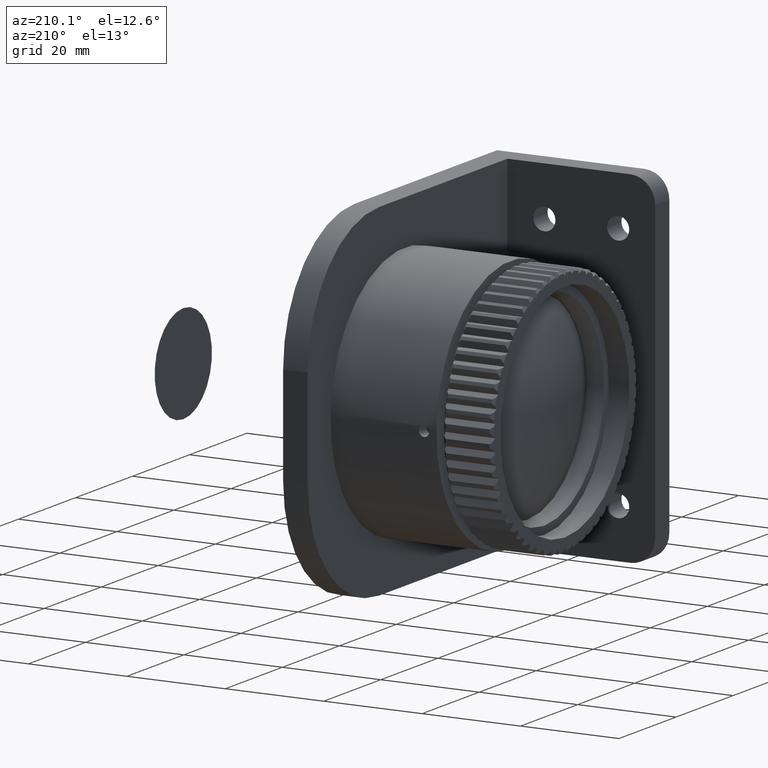
[diagram: clean part render]
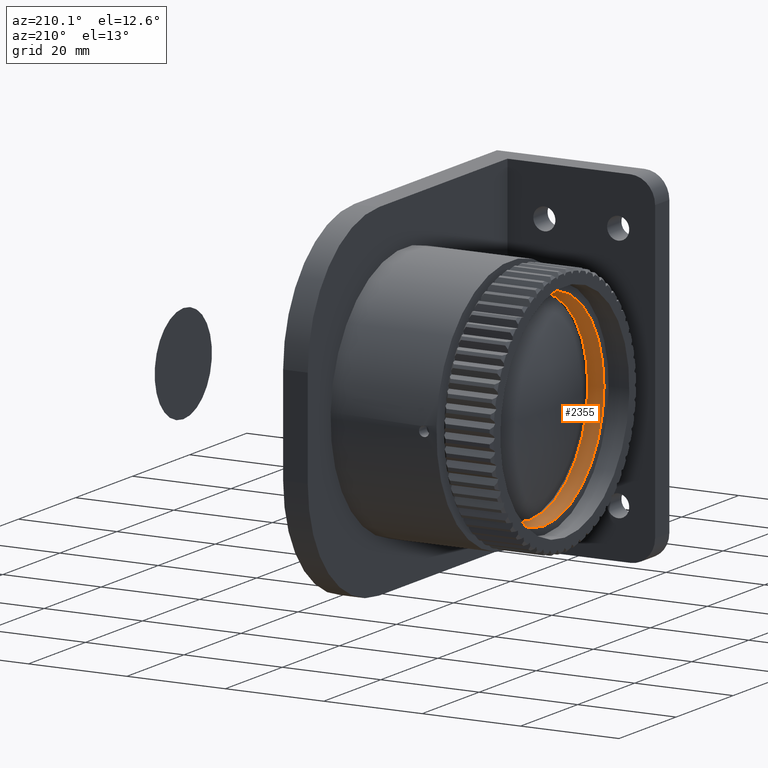
[diagram: same view with one face highlighted and labeled with its STEP entity id]
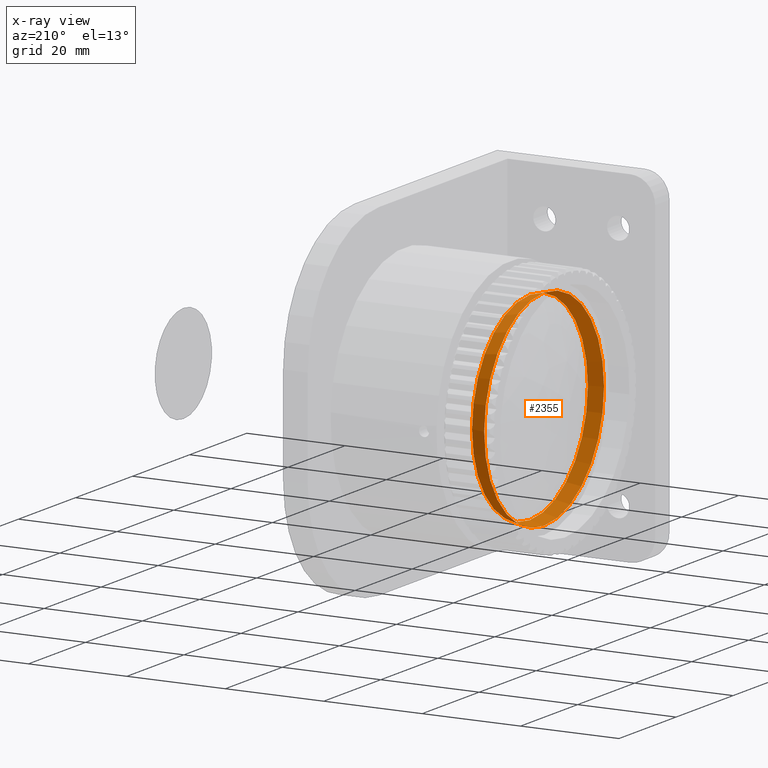
[diagram: x-ray of the same camera — body ghosted, the highlighted face saturated]
A machine part, auxiliary view. The second image highlights one B-rep face of the part: STEP entity #2355.
The next image is the same camera in x-ray: the body ghosted, the highlighted face saturated — about 0% of this face is hidden behind the body in this view.
In plain terms, the highlighted conical surface has half-angle 13.655 deg.
Its self-contained STEP definition (entity closure, byte-faithful):
#443 = EDGE_LOOP ( 'NONE', ( #3593 ) ) ;
#1232 = DIRECTION ( 'NONE',  ( 8.545435842250279754E-17, 0.000000000000000000, 1.000000000000000000 ) ) ;
#1340 = CIRCLE ( 'NONE', #7413, 20.30000000000000426 ) ;
#2247 = DIRECTION ( 'NONE',  ( 0.000000000000000000, 0.000000000000000000, 1.000000000000000000 ) ) ;
#2355 = ADVANCED_FACE ( 'NONE', ( #12523, #3794 ), #11694, .F. ) ;
#2682 = AXIS2_PLACEMENT_3D ( 'NONE', #3869, #8170, #9433 ) ;
#2803 = EDGE_CURVE ( 'NONE', #4955, #4955, #1340, .T. ) ;
#3593 = ORIENTED_EDGE ( 'NONE', *, *, #2803, .F. ) ;
#3794 = FACE_BOUND ( 'NONE', #443, .T. ) ;
#3869 = CARTESIAN_POINT ( 'NONE',  ( 1.588697371383648971, 0.000000000000000000, 0.000000000000000000 ) ) ;
#4371 = EDGE_LOOP ( 'NONE', ( #12339 ) ) ;
#4955 = VERTEX_POINT ( 'NONE', #9252 ) ;
#5143 = CARTESIAN_POINT ( 'NONE',  ( 1.588697371383648971, 0.000000000000000000, 21.00000000000000000 ) ) ;
#5612 = DIRECTION ( 'NONE',  ( -1.000000000000000000, 0.000000000000000000, 0.000000000000000000 ) ) ;
#5992 = VERTEX_POINT ( 'NONE', #5143 ) ;
#7413 = AXIS2_PLACEMENT_3D ( 'NONE', #10052, #5612, #1232 ) ;
#8129 = CIRCLE ( 'NONE', #9261, 21.00000000000000000 ) ;
#8170 = DIRECTION ( 'NONE',  ( -1.000000000000000000, 0.000000000000000000, 0.000000000000000000 ) ) ;
#9252 = CARTESIAN_POINT ( 'NONE',  ( 4.470145420749931375, 0.000000000000000000, 20.30000000000000426 ) ) ;
#9261 = AXIS2_PLACEMENT_3D ( 'NONE', #11916, #12760, #2247 ) ;
#9433 = DIRECTION ( 'NONE',  ( 0.000000000000000000, 0.000000000000000000, 1.000000000000000000 ) ) ;
#10052 = CARTESIAN_POINT ( 'NONE',  ( 4.470145420749929599, 0.000000000000000000, 0.000000000000000000 ) ) ;
#11694 = CONICAL_SURFACE ( 'NONE', #2682, 21.00000000000000000, 0.2383167762618575158 ) ;
#11916 = CARTESIAN_POINT ( 'NONE',  ( 1.588697371383648971, 0.000000000000000000, 0.000000000000000000 ) ) ;
#12339 = ORIENTED_EDGE ( 'NONE', *, *, #12918, .F. ) ;
#12523 = FACE_OUTER_BOUND ( 'NONE', #4371, .T. ) ;
#12760 = DIRECTION ( 'NONE',  ( 1.000000000000000000, -0.000000000000000000, -0.000000000000000000 ) ) ;
#12918 = EDGE_CURVE ( 'NONE', #5992, #5992, #8129, .T. ) ;